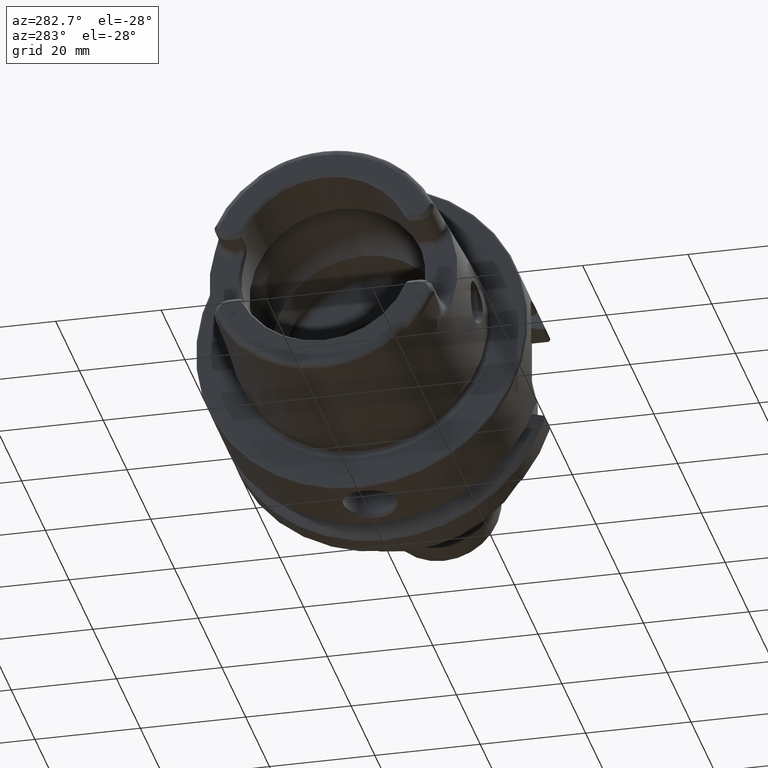
[diagram: clean part render]
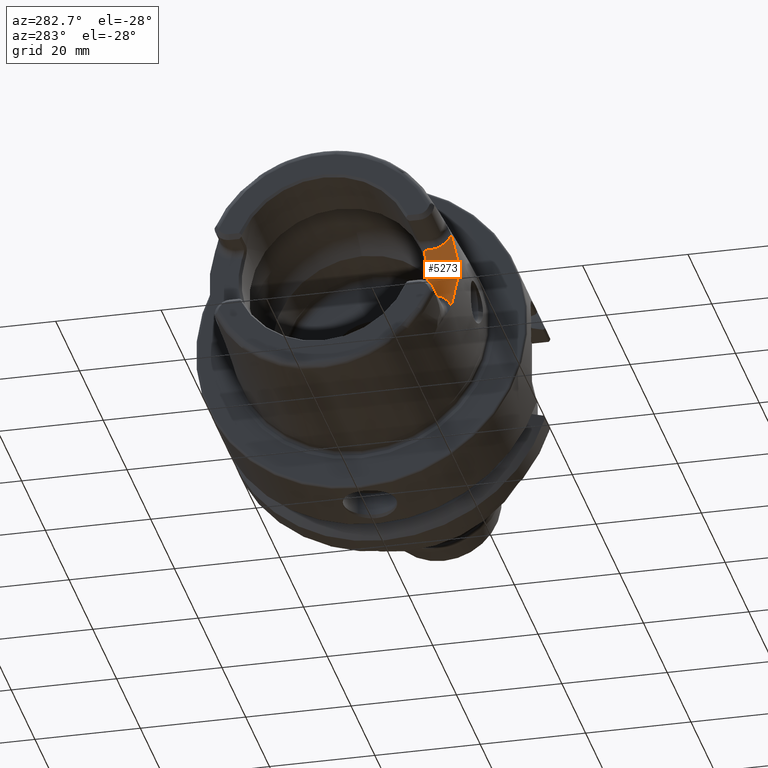
[diagram: same view with one face highlighted and labeled with its STEP entity id]
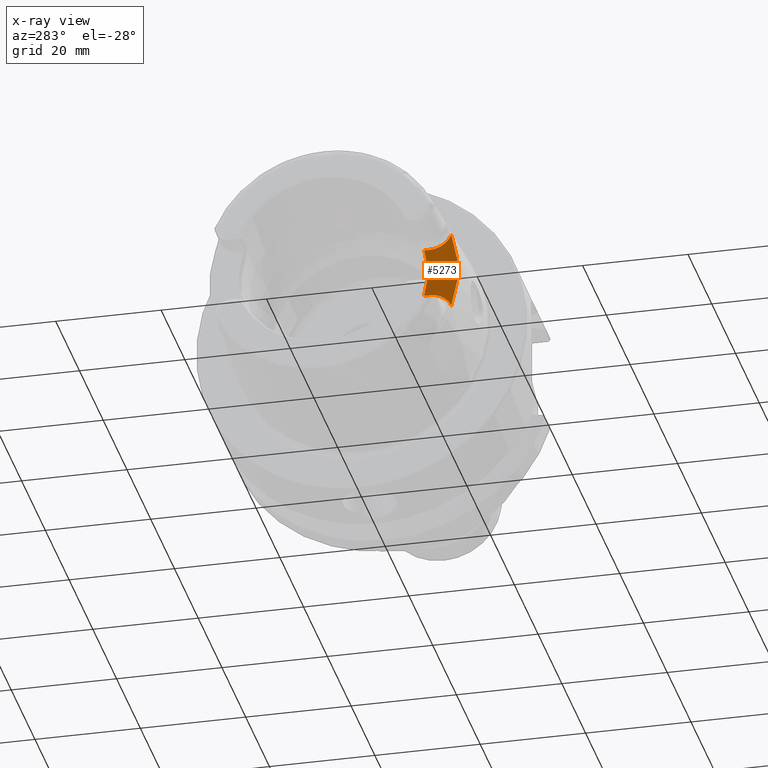
[diagram: x-ray of the same camera — body ghosted, the highlighted face saturated]
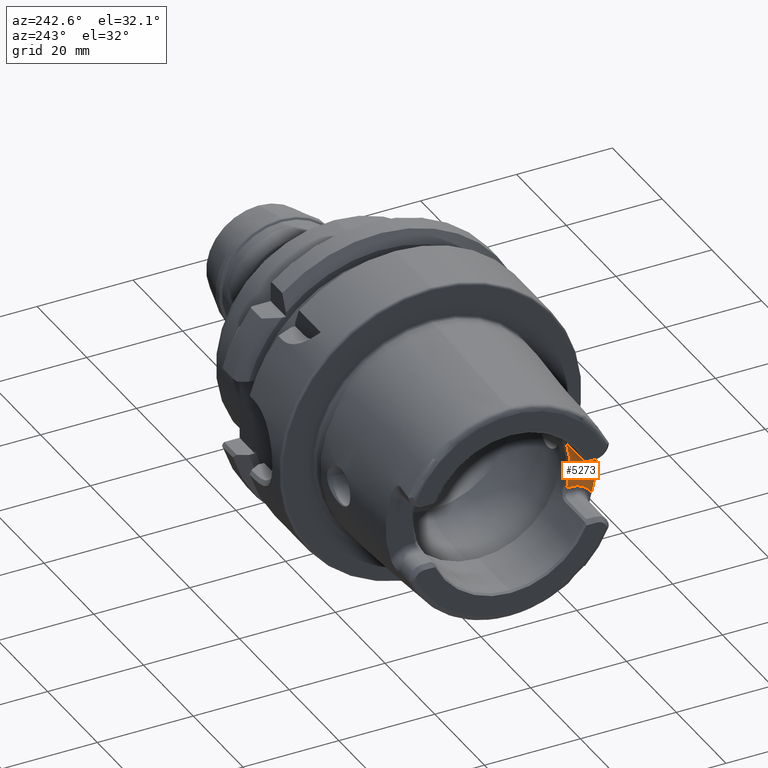
[diagram: same view with one face highlighted and labeled with its STEP entity id]
A machine part, auxiliary view. The second image highlights one B-rep face of the part: STEP entity #5273.
The next image is the same camera in x-ray: the body ghosted, the highlighted face saturated — about 0% of this face is hidden behind the body in this view.
A second angle (auxiliary view) of the same face is appended — the face is thin or edge-on in the first view.
In plain terms, the highlighted planar face has unit normal (1, 0, 0).
Its self-contained STEP definition (entity closure, byte-faithful):
#1667=CARTESIAN_POINT('',(-2.199999999595E1,-1.683737191633E1,
4.770000548046E0));
#1693=CARTESIAN_POINT('',(-2.2E1,3.677058657559E-13,-1.323385845353E-13));
#1694=DIRECTION('',(-1.E0,0.E0,0.E0));
#1695=DIRECTION('',(0.E0,-9.621355498715E-1,-2.725714285714E-1));
#1696=AXIS2_PLACEMENT_3D('',#1693,#1694,#1695);
#1698=DIRECTION('',(-3.515322377849E-9,-9.999999999999E-1,-4.752799672626E-7));
#1699=VECTOR('',#1698,1.152628082722E0);
#1700=CARTESIAN_POINT('',(-2.199999999595E1,-1.683737191633E1,
4.770000548046E0));
#1701=LINE('',#1700,#1699);
#1702=CARTESIAN_POINT('',(-2.2E1,-1.799E1,9.15E0));
#1703=DIRECTION('',(-1.E0,0.E0,0.E0));
#1704=DIRECTION('',(0.E0,0.E0,-1.E0));
#1705=AXIS2_PLACEMENT_3D('',#1702,#1703,#1704);
#1707=CARTESIAN_POINT('',(-2.2E1,0.E0,0.E0));
#1708=DIRECTION('',(1.E0,0.E0,0.E0));
#1709=DIRECTION('',(0.E0,-9.478058907476E-1,3.188479158848E-1));
#1710=AXIS2_PLACEMENT_3D('',#1707,#1708,#1709);
#1712=CARTESIAN_POINT('',(-2.2E1,-1.799E1,-9.15E0));
#1713=DIRECTION('',(1.E0,0.E0,0.E0));
#1714=DIRECTION('',(0.E0,0.E0,1.E0));
#1715=AXIS2_PLACEMENT_3D('',#1712,#1713,#1714);
#1717=DIRECTION('',(2.422666533344E-11,-1.E0,-2.944384149628E-8));
#1718=VECTOR('',#1717,1.152627864010E0);
#1719=CARTESIAN_POINT('',(-2.200000000003E1,-1.683737213433E1,
-4.769999966495E0));
#1720=LINE('',#1719,#1718);
#2901=CARTESIAN_POINT('',(-2.2E1,-1.799E1,-4.77E0));
#2902=CARTESIAN_POINT('',(-2.2E1,-2.200658163281E1,-7.403153702532E0));
#2903=VERTEX_POINT('',#2901);
#2904=VERTEX_POINT('',#2902);
#2907=CARTESIAN_POINT('',(-2.2E1,-1.799E1,4.77E0));
#2908=CARTESIAN_POINT('',(-2.2E1,-2.200658163281E1,7.403153702532E0));
#2909=VERTEX_POINT('',#2907);
#2910=VERTEX_POINT('',#2908);
#2924=VERTEX_POINT('',#1667);
#2928=CARTESIAN_POINT('',(-2.2E1,-1.683737212275E1,-4.77E0));
#2929=VERTEX_POINT('',#2928);
#5257=CARTESIAN_POINT('',(-2.2E1,0.E0,6.27E0));
#5258=DIRECTION('',(1.E0,0.E0,0.E0));
#5259=DIRECTION('',(0.E0,0.E0,-1.E0));
#5260=AXIS2_PLACEMENT_3D('',#5257,#5258,#5259);
#5261=PLANE('',#5260);
#5262=ORIENTED_EDGE('',*,*,#5250,.T.);
#5263=ORIENTED_EDGE('',*,*,#5172,.T.);
#5265=ORIENTED_EDGE('',*,*,#5264,.T.);
#5266=ORIENTED_EDGE('',*,*,#4822,.T.);
#5268=ORIENTED_EDGE('',*,*,#5267,.F.);
#5270=ORIENTED_EDGE('',*,*,#5269,.F.);
#5271=EDGE_LOOP('',(#5262,#5263,#5265,#5266,#5268,#5270));
#5272=FACE_OUTER_BOUND('',#5271,.F.);
#5273=ADVANCED_FACE('',(#5272),#5261,.F.);
#1697=CIRCLE('',#1696,1.75E1);
#1706=CIRCLE('',#1705,4.38E0);
#1711=CIRCLE('',#1710,2.321844783582E1);
#1716=CIRCLE('',#1715,4.38E0);
#4822=EDGE_CURVE('',#2910,#2904,#1711,.T.);
#5172=EDGE_CURVE('',#2924,#2909,#1701,.T.);
#5250=EDGE_CURVE('',#2929,#2924,#1697,.T.);
#5264=EDGE_CURVE('',#2909,#2910,#1706,.T.);
#5267=EDGE_CURVE('',#2903,#2904,#1716,.T.);
#5269=EDGE_CURVE('',#2929,#2903,#1720,.T.);